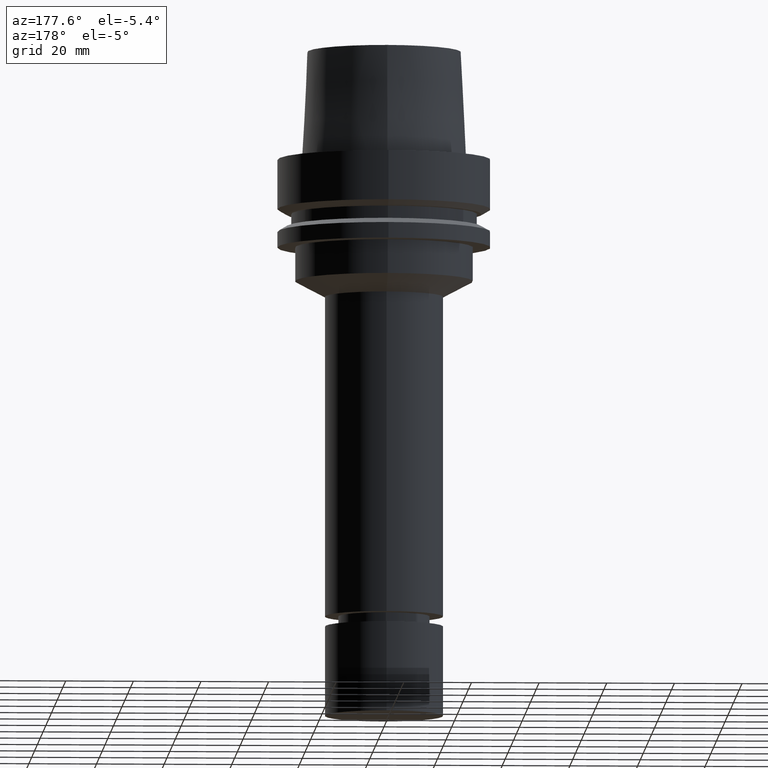
[diagram: clean part render]
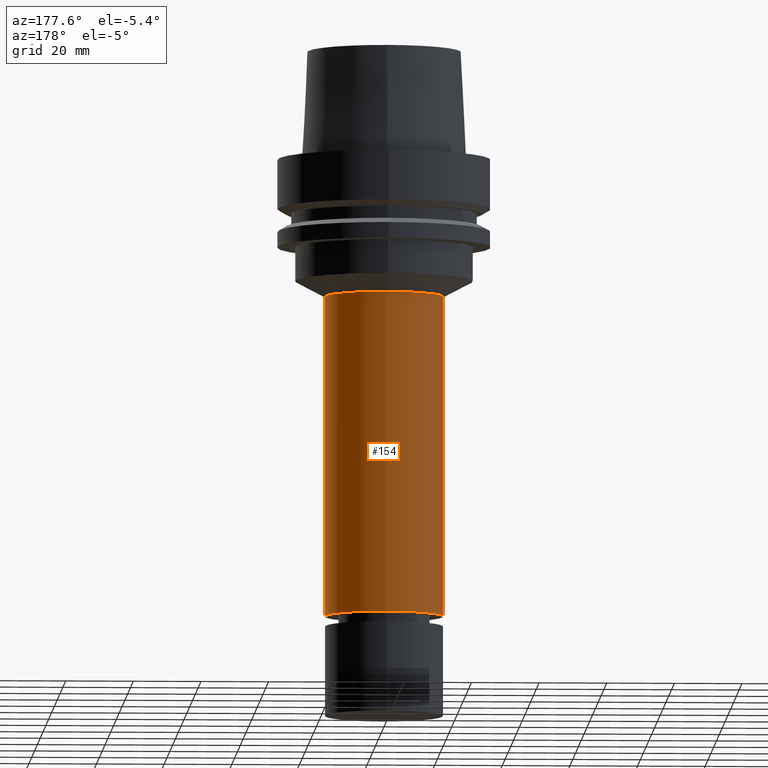
[diagram: same view with one face highlighted and labeled with its STEP entity id]
A machine part, auxiliary view. The second image highlights one B-rep face of the part: STEP entity #154.
In plain terms, the highlighted cylindrical surface (bore or boss wall) has radius 17.5 mm, axis along (-0, -0, 1).
Its self-contained STEP definition (entity closure, byte-faithful):
#107=EDGE_CURVE('Unnamed[1]',#258,#258,#259,.T.);
#154=ADVANCED_FACE('Unnamed[1]',(#331,#332),#333,.T.);
#161=EDGE_CURVE('Unnamed[1]',#343,#343,#344,.T.);
#258=VERTEX_POINT('',#461);
#259=CIRCLE('',#462,17.4999999999997);
#331=FACE_BOUND('',#551,.T.);
#332=FACE_BOUND('',#552,.T.);
#333=CYLINDRICAL_SURFACE('',#553,17.4999999999998);
#343=VERTEX_POINT('',#566);
#344=CIRCLE('',#567,17.4999999999999);
#461=CARTESIAN_POINT('',(2.48970289259618E-015,17.4999999999997,-40.6599338573311));
#462=AXIS2_PLACEMENT_3D('',#679,#680,#681);
#551=EDGE_LOOP('',(#759));
#552=EDGE_LOOP('',(#760));
#553=AXIS2_PLACEMENT_3D('',#761,#762,#763);
#566=CARTESIAN_POINT('',(8.29698206422331E-015,17.4999999999999,-135.5));
#567=AXIS2_PLACEMENT_3D('',#773,#774,#775);
#679=CARTESIAN_POINT('',(2.48970289259618E-015,4.97940578519237E-015,-40.6599338573311));
#680=DIRECTION('',(-6.12323399573677E-017,-1.22464679914735E-016,1.0));
#681=DIRECTION('',(-1.23259516440783E-032,1.0,1.22464679914735E-016));
#759=ORIENTED_EDGE('',*,*,#107,.F.);
#760=ORIENTED_EDGE('',*,*,#161,.T.);
#761=CARTESIAN_POINT('',(5.39334247840974E-015,1.07866849568195E-014,-88.0799669286655));
#762=DIRECTION('',(-6.12323399573677E-017,-1.22464679914735E-016,1.0));
#763=DIRECTION('',(-1.23259516440783E-032,1.0,1.22464679914735E-016));
#773=CARTESIAN_POINT('',(8.29698206422331E-015,1.65939641284466E-014,-135.5));
#774=DIRECTION('',(-6.12323399573677E-017,-1.22464679914735E-016,1.0));
#775=DIRECTION('',(-1.23259516440783E-032,1.0,1.22464679914735E-016));